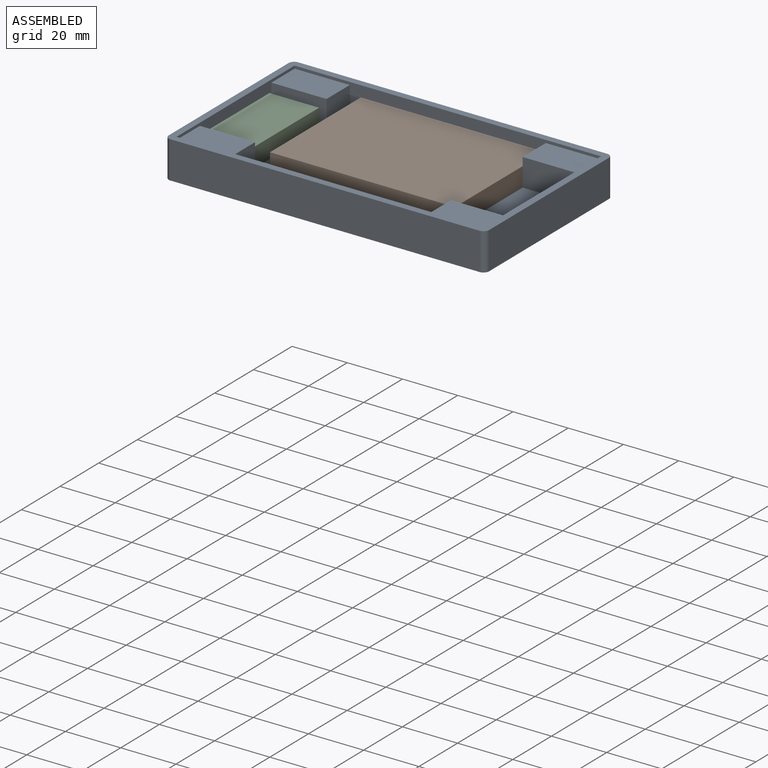
[diagram: assembled view]
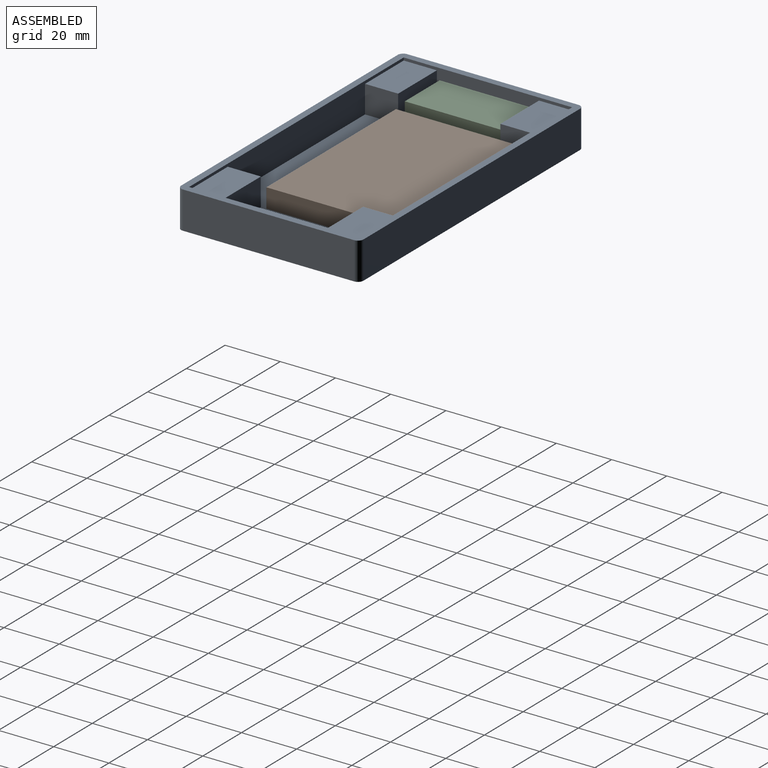
[diagram: assembled view, second angle]
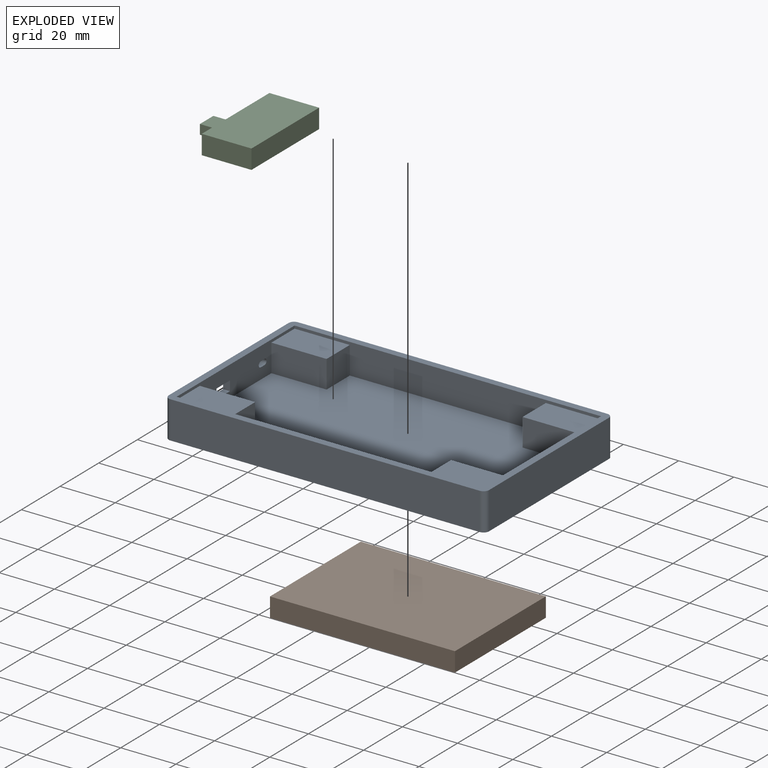
[diagram: exploded view]
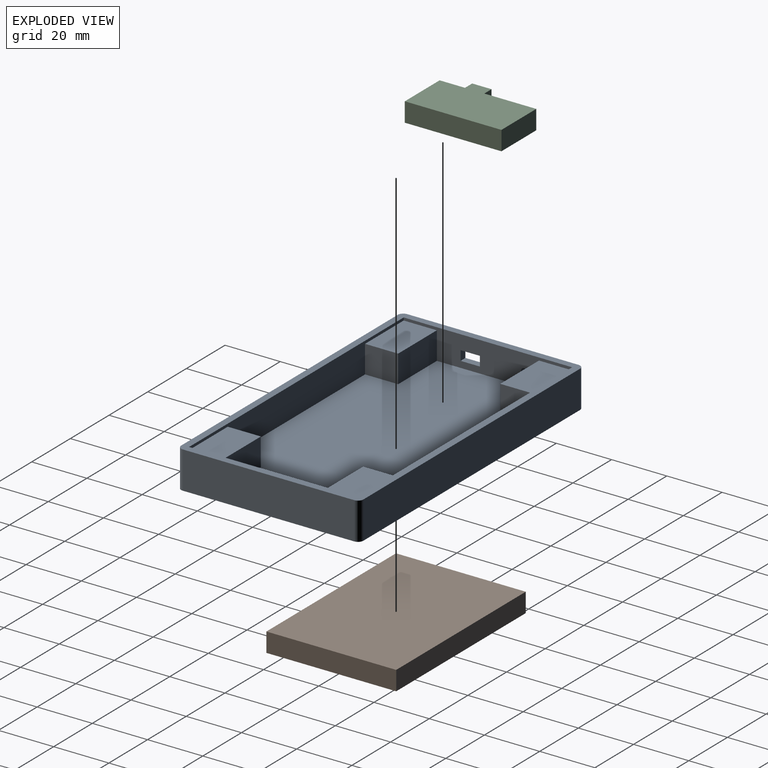
[diagram: exploded view, second angle]
ASSEMBLY  parts=3 mates=2
PART A: 41 faces, bbox 116x66x13.5 mm
  f0: plane 111x61mm, normal (0,0,1), area 5811mm2, adj f1,f2,f3,f10,f11,f12,f14,f15
  f1: plane 61x11mm, normal (-1,0,0), area 431mm2, adj f0,f2,f4,f10,f15,f16,f21,f22
  f2: plane 111x11mm, normal (0,-1,0), area 821mm2, adj f0,f1,f3,f4,f12,f13,f14,f16
  f3: plane 61x11mm, normal (1,0,0), area 399.4mm2, adj f0,f2,f4,f10,f11,f13,f18,f19
  f4: plane 116x66mm, normal (0,0,1), area 881.6mm2, adj f1,f2,f3,f5,f6,f7,f8,f10
  f5: plane 62x13.5mm, normal (-1,0,0), area 805.4mm2, adj f4,f9,f23,f26,f27,f28,f29,f30
  f6: plane 112x13.5mm, normal (0,-1,0), area 1512mm2, adj f4,f9,f23,f24
  f7: plane 62x13.5mm, normal (1,0,0), area 837mm2, adj f4,f9,f24,f25
  f8: plane 112x13.5mm, normal (0,1,0), area 1512mm2, adj f4,f9,f25,f26
  f9: plane 116x66mm, normal (0,0,-1), area 7652.6mm2, adj f5,f6,f7,f8,f23,f24,f25,f26
  f10: plane 111x11mm, normal (0,1,0), area 821mm2, adj f0,f1,f3,f4,f17,f19,f20,f22
  f11: plane 20x10mm, normal (0,-1,0), area 200mm2, adj f0,f3,f12,f13
  f12: plane 12x10mm, normal (1,0,0), area 120mm2, adj f0,f2,f11,f13
  f13: plane 20x12mm, normal (0,0,1), area 240mm2, adj f2,f3,f11,f12
  f14: plane 12x10mm, normal (-1,0,0), area 120mm2, adj f0,f2,f15,f16
  f15: plane 20x10mm, normal (0,-1,0), area 200mm2, adj f0,f1,f14,f16
  f16: plane 20x12mm, normal (0,0,1), area 240mm2, adj f1,f2,f14,f15
  f17: plane 12x10mm, normal (1,0,0), area 120mm2, adj f0,f10,f18,f19
  f18: plane 20x10mm, normal (0,1,0), area 200mm2, adj f0,f3,f17,f19
  f19: plane 20x12mm, normal (0,0,1), area 240mm2, adj f3,f10,f17,f18
  f20: plane 12x10mm, normal (-1,0,0), area 120mm2, adj f0,f10,f21,f22
  f21: plane 20x10mm, normal (0,1,0), area 200mm2, adj f0,f1,f20,f22
  f22: plane 20x12mm, normal (0,0,1), area 240mm2, adj f1,f10,f20,f21
  f23: cylinder r=2mm len=13.5mm, axis (0,0,1), area 42.4mm2, adj f4,f5,f6,f9
  f24: cylinder r=2mm len=13.5mm, axis (0,0,-1), area 42.4mm2, adj f4,f6,f7,f9
  f25: cylinder r=2mm len=13.5mm, axis (0,0,1), area 42.4mm2, adj f4,f7,f8,f9
  f26: cylinder r=2mm len=13.5mm, axis (0,0,-1), area 42.4mm2, adj f4,f5,f8,f9
  f27: plane 2.5x2mm, normal (0,0,1), area 5mm2, adj f3,f5,f28,f29
  f28: cylinder r=1mm len=2.5mm, axis (-1,0,0), area 7.9mm2, adj f3,f5,f27,f30
  f29: cylinder r=1mm len=2.5mm, axis (-1,0,0), area 7.9mm2, adj f3,f5,f27,f30
  f30: plane 2.5x2mm, normal (0,0,-1), area 5mm2, adj f3,f5,f28,f29
  f31: plane 3.5x2.5mm, normal (0,-1,0), area 8.8mm2, adj f3,f5,f32,f33
  f32: plane 7x2.5mm, normal (0,0,-1), area 17.5mm2, adj f3,f5,f31,f34
  f33: plane 7x2.5mm, normal (0,0,1), area 17.5mm2, adj f3,f5,f31,f34
  f34: plane 3.5x2.5mm, normal (0,1,0), area 8.8mm2, adj f3,f5,f32,f33
  f35: plane 9.5x7.5mm, normal (-1,0,0), area 71.2mm2, adj f36,f37,f39,f40
  f36: plane 17.5x7.5mm, normal (0,1,0), area 131.2mm2, adj f35,f37,f38,f40
  f37: plane 17.5x9.5mm, normal (0,0,-1), area 166.2mm2, adj f35,f36,f38,f39
  f38: plane 9.5x7.5mm, normal (1,0,0), area 71.2mm2, adj f36,f37,f39,f40
  f39: plane 17.5x7.5mm, normal (0,-1,0), area 131.2mm2, adj f35,f37,f38,f40
  f40: plane 17.5x9.5mm, normal (0,0,1), area 166.2mm2, adj f35,f36,f38,f39
PART B: 6 faces, bbox 67x47x7 mm
  f0: plane 67x7mm, normal (0,1,0), area 469mm2, adj f1,f3,f4,f5
  f1: plane 47x7mm, normal (-1,0,0), area 329mm2, adj f0,f2,f4,f5
  f2: plane 67x7mm, normal (0,-1,0), area 469mm2, adj f1,f3,f4,f5
  f3: plane 47x7mm, normal (1,0,0), area 329mm2, adj f0,f2,f4,f5
  f4: plane 67x47mm, normal (0,0,1), area 3149mm2, adj f0,f1,f2,f3
  f5: plane 67x47mm, normal (0,0,-1), area 3149mm2, adj f0,f1,f2,f3
PART C: 11 faces, bbox 24x35x7 mm
  f0: plane 18x7mm, normal (0,1,0), area 126mm2, adj f1,f3,f4,f5
  f1: plane 35x7mm, normal (-1,0,0), area 220.5mm2, adj f0,f2,f4,f5,f6,f7,f8,f9
  f2: plane 18x7mm, normal (0,-1,0), area 126mm2, adj f1,f3,f4,f5
  f3: plane 35x7mm, normal (1,0,0), area 245mm2, adj f0,f2,f4,f5
  f4: plane 35x18mm, normal (0,0,1), area 630mm2, adj f0,f1,f2,f3
  f5: plane 35x18mm, normal (0,0,-1), area 630mm2, adj f0,f1,f2,f3
  f6: plane 7x6mm, normal (0,0,1), area 42mm2, adj f1,f7,f9,f10
  f7: plane 6x3.5mm, normal (0,1,0), area 21mm2, adj f1,f6,f8,f10
  f8: plane 7x6mm, normal (0,0,-1), area 42mm2, adj f1,f7,f9,f10
  f9: plane 6x3.5mm, normal (0,-1,0), area 21mm2, adj f1,f6,f8,f10
  f10: plane 7x3.5mm, normal (-1,0,0), area 24.5mm2, adj f6,f7,f8,f9
PLACE A at identity fixed
PLACE B t=(-32.28,73.94,2.5)mm
PLACE C t=(2.5,57.59,2.5)mm
MATE fastened A.f0 <-> C.f5  axis (0,0,1) through (2.5,33,2.5)mm
MATE fastened B.f5 <-> A.f0  axis (0,0,1) through (93.5,63.5,2.5)mm
